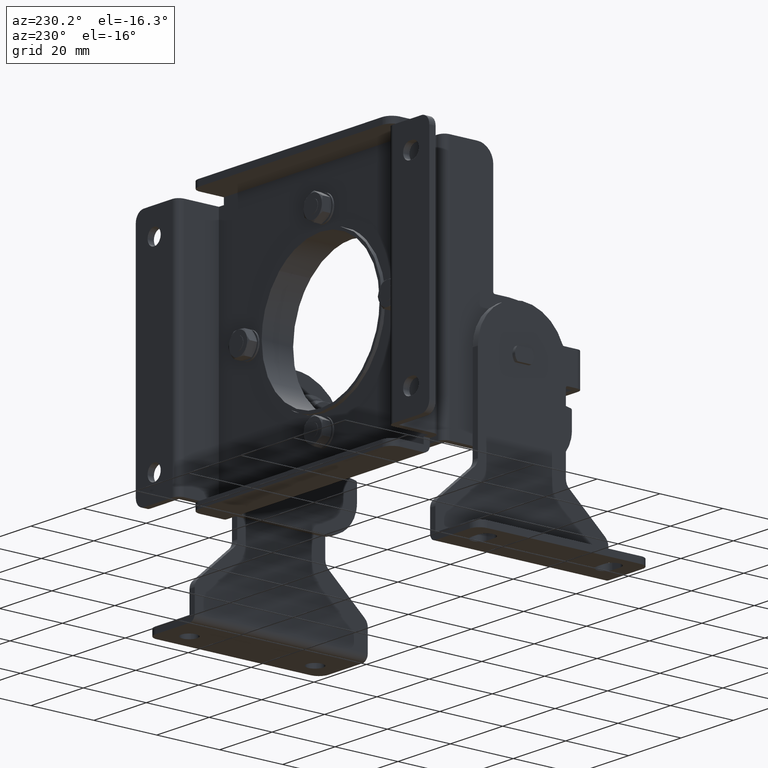
[diagram: clean part render]
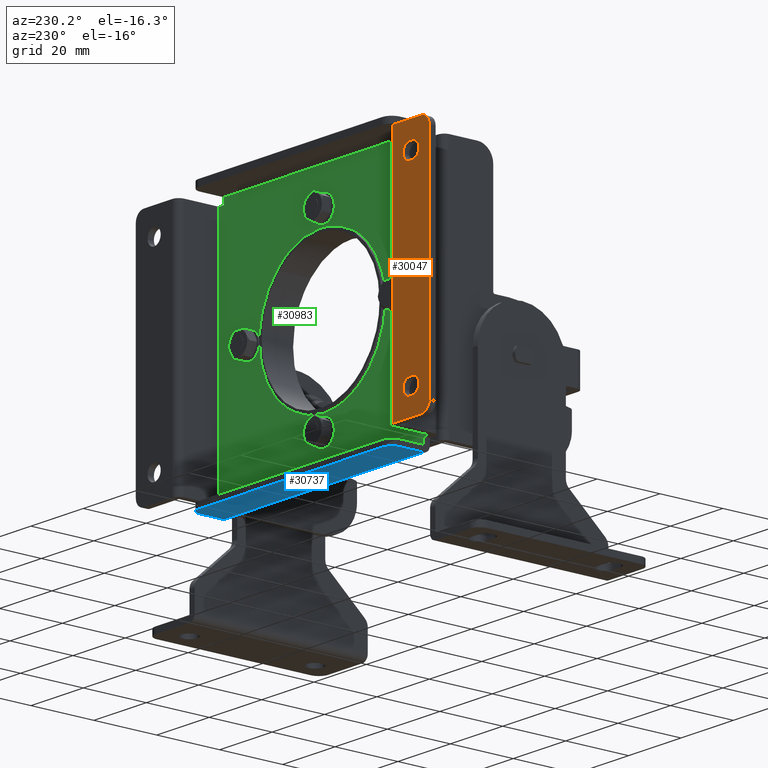
[diagram: same view with three faces highlighted in distinct colors, each labeled with its STEP entity id]
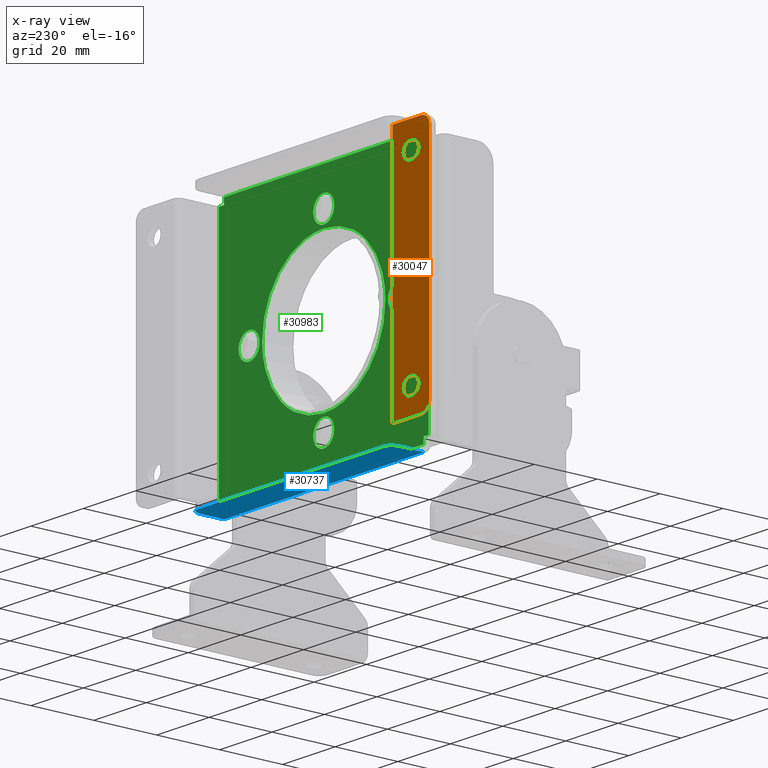
[diagram: x-ray of the same camera — body ghosted, the three highlighted faces saturated]
A machine part, auxiliary view with three faces highlighted in distinct colors.
The next image is the same camera in x-ray (body ghosted, the three faces saturated) — at least one of them is partly hidden behind the body in this view.
Their STEP definitions:

[orange] entity #30047 — the highlighted face is a freeform B-spline surface patch.
#28877=CARTESIAN_POINT('',(-49.500000000000000,0.0,27.500000000000000));
#28878=VERTEX_POINT('',#28877);
#28879=CARTESIAN_POINT('',(-48.500000000000000,0.0,27.500000000000000));
#28880=VERTEX_POINT('',#28879);
#28881=CARTESIAN_POINT('',(-49.500000000000000,0.0,27.500000000000000));
#28882=CARTESIAN_POINT('',(-48.500000000000000,0.0,27.500000000000000));
#28883=QUASI_UNIFORM_CURVE('',1,(#28881,#28882),.UNSPECIFIED.,.F.,.U.);
#28884=EDGE_CURVE('',#28878,#28880,#28883,.T.);
#28926=CARTESIAN_POINT('',(-51.999999999998003,0.0,29.999996832652950));
#28927=VERTEX_POINT('',#28926);
#28928=CARTESIAN_POINT('',(-51.999999999998003,0.0,29.999996832652950));
#28929=CARTESIAN_POINT('',(-52.000261943564503,0.0,29.693173835896939));
#28930=CARTESIAN_POINT('',(-51.897038132470620,0.0,29.141096968928689));
#28931=CARTESIAN_POINT('',(-51.540323811975313,0.0,28.511507226179369));
#28932=CARTESIAN_POINT('',(-51.143456945256233,0.0,28.094783465851592));
#28933=CARTESIAN_POINT('',(-50.706608699295693,0.0,27.787068165658031));
#28934=CARTESIAN_POINT('',(-50.154467541421823,0.0,27.558368814043298));
#28935=CARTESIAN_POINT('',(-49.724988774447532,0.0,27.499924841916780));
#28936=CARTESIAN_POINT('',(-49.500000000000000,0.0,27.500000000000000));
#28937=B_SPLINE_CURVE_WITH_KNOTS('',3,(#28928,#28929,#28930,#28931,#28932,#28933,#28934,#28935,#28936),.UNSPECIFIED.,.F.,.U.,(4,1,1,1,1,1,4),(0.000000176857155,0.920407877732268,1.656768840992928,2.147585234089817,2.638497523983445,3.252133924489902,3.927087575630514),.UNSPECIFIED.);
#28938=EDGE_CURVE('',#28927,#28878,#28937,.T.);
#28940=CARTESIAN_POINT('',(-49.500000000000000,0.0,32.500000000000000));
#28941=VERTEX_POINT('',#28940);
#28942=CARTESIAN_POINT('',(-49.500000000000000,0.0,32.500000000000000));
#28943=CARTESIAN_POINT('',(-49.724988318694059,0.0,32.500082092535457));
#28944=CARTESIAN_POINT('',(-50.113551037790707,0.0,32.447164692798353));
#28945=CARTESIAN_POINT('',(-50.669645786239691,0.0,32.232680162117617));
#28946=CARTESIAN_POINT('',(-51.115111980651960,0.0,31.935003203719042));
#28947=CARTESIAN_POINT('',(-51.568763980381171,0.0,31.458770400849222));
#28948=CARTESIAN_POINT('',(-51.911141189208131,0.0,30.818099801962688));
#28949=CARTESIAN_POINT('',(-52.000111027833590,0.0,30.265891814465849));
#28950=CARTESIAN_POINT('',(-51.999999999998003,0.0,29.999996832652950));
#28951=B_SPLINE_CURVE_WITH_KNOTS('',3,(#28942,#28943,#28944,#28945,#28946,#28947,#28948,#28949,#28950),.UNSPECIFIED.,.F.,.U.,(4,1,1,1,1,1,4),(0.000000172517670,0.674954436745335,1.165855475587356,1.779504131965912,2.270320976130868,3.129400962730091,3.927091146057907),.UNSPECIFIED.);
#28952=EDGE_CURVE('',#28941,#28927,#28951,.T.);
#28996=CARTESIAN_POINT('',(-48.500000000000000,0.0,32.500000000000000));
#28997=VERTEX_POINT('',#28996);
#28998=CARTESIAN_POINT('',(-48.500000000000000,0.0,32.500000000000000));
#28999=CARTESIAN_POINT('',(-49.500000000000000,0.0,32.500000000000000));
#29000=QUASI_UNIFORM_CURVE('',1,(#28998,#28999),.UNSPECIFIED.,.F.,.U.);
#29001=EDGE_CURVE('',#28997,#28941,#29000,.T.);
#29037=CARTESIAN_POINT('',(-46.000000000001997,0.0,30.000003167347050));
#29038=VERTEX_POINT('',#29037);
#29039=CARTESIAN_POINT('',(-46.000000000001997,0.0,30.000003167347050));
#29040=CARTESIAN_POINT('',(-45.999842678690747,0.0,30.265917079846869));
#29041=CARTESIAN_POINT('',(-46.069213401332867,0.0,30.695322041625779));
#29042=CARTESIAN_POINT('',(-46.344033493028093,0.0,31.315376106152890));
#29043=CARTESIAN_POINT('',(-46.750988309027413,0.0,31.837021152268111));
#29044=CARTESIAN_POINT('',(-47.291999694994040,0.0,32.217935652206251));
#29045=CARTESIAN_POINT('',(-47.886452696887147,0.0,32.447154623604654));
#29046=CARTESIAN_POINT('',(-48.275010430675863,0.0,32.500086355877833));
#29047=CARTESIAN_POINT('',(-48.500000000000000,0.0,32.500000000000000));
#29048=B_SPLINE_CURVE_WITH_KNOTS('',3,(#29039,#29040,#29041,#29042,#29043,#29044,#29045,#29046,#29047),.UNSPECIFIED.,.F.,.U.,(4,1,1,1,1,1,4),(0.000000176852652,0.797689634547580,1.288590226622449,2.024881895100623,2.761233333271179,3.252133924488909,3.927087575630557),.UNSPECIFIED.);
#29049=EDGE_CURVE('',#29038,#28997,#29048,.T.);
#29051=CARTESIAN_POINT('',(-48.500000000000000,0.0,27.500000000000000));
#29052=CARTESIAN_POINT('',(-48.193162061804358,0.0,27.499714058373112));
#29053=CARTESIAN_POINT('',(-47.682043582309419,0.0,27.595378192562031));
#29054=CARTESIAN_POINT('',(-47.118654397809117,0.0,27.896569412383169));
#29055=CARTESIAN_POINT('',(-46.738226139762332,0.0,28.208870428710838));
#29056=CARTESIAN_POINT('',(-46.362113848126022,0.0,28.644484854658561));
#29057=CARTESIAN_POINT('',(-46.069382252487529,0.0,29.263673311560972));
#29058=CARTESIAN_POINT('',(-45.999954969926492,0.0,29.775029924706789));
#29059=CARTESIAN_POINT('',(-46.000000000001997,0.0,30.000003167347050));
#29060=B_SPLINE_CURVE_WITH_KNOTS('',3,(#29051,#29052,#29053,#29054,#29055,#29056,#29057,#29058,#29059),.UNSPECIFIED.,.F.,.U.,(4,1,1,1,1,1,4),(0.000000172518658,0.920408710848867,1.534023585433655,1.902207583911122,2.393067728789425,3.252136883353010,3.927091146057906),.UNSPECIFIED.);
#29061=EDGE_CURVE('',#28880,#29038,#29060,.T.);
#29112=CARTESIAN_POINT('',(-46.000000000002011,0.0,-29.999996832652950));
#29113=VERTEX_POINT('',#29112);
#29114=CARTESIAN_POINT('',(-48.500000000000000,0.0,-27.500000000000000));
#29115=VERTEX_POINT('',#29114);
#29116=CARTESIAN_POINT('',(-46.000000000002011,0.0,-29.999996832652950));
#29117=CARTESIAN_POINT('',(-45.999720486164072,0.0,-29.693159017702310));
#29118=CARTESIAN_POINT('',(-46.095377521791427,0.0,-29.182052253348189));
#29119=CARTESIAN_POINT('',(-46.474193665845242,0.0,-28.473169004292121));
#29120=CARTESIAN_POINT('',(-46.973143602778819,0.0,-27.974160044782181));
#29121=CARTESIAN_POINT('',(-47.682065802710902,0.0,-27.595397473390729));
#29122=CARTESIAN_POINT('',(-48.193160181337802,0.0,-27.499713670339752));
#29123=CARTESIAN_POINT('',(-48.500000000000000,0.0,-27.500000000000000));
#29124=B_SPLINE_CURVE_WITH_KNOTS('',3,(#29116,#29117,#29118,#29119,#29120,#29121,#29122,#29123),.UNSPECIFIED.,.F.,.U.,(4,1,1,1,1,4),(0.000000176857770,0.920407877732480,1.534022196577108,2.393065560264816,3.006679873829063,3.927087575630463),.UNSPECIFIED.);
#29125=EDGE_CURVE('',#29113,#29115,#29124,.T.);
#29127=CARTESIAN_POINT('',(-48.500000000000000,0.0,-32.500000000000000));
#29128=VERTEX_POINT('',#29127);
#29129=CARTESIAN_POINT('',(-48.500000000000000,0.0,-32.500000000000000));
#29130=CARTESIAN_POINT('',(-48.234089015468498,0.0,-32.500155000918703));
#29131=CARTESIAN_POINT('',(-47.804685732959094,0.0,-32.430775249650608));
#29132=CARTESIAN_POINT('',(-47.147000617161382,0.0,-32.139395781917102));
#29133=CARTESIAN_POINT('',(-46.601469968699590,0.0,-31.691735361421689));
#29134=CARTESIAN_POINT('',(-46.125837524608428,0.0,-30.940511298283852));
#29135=CARTESIAN_POINT('',(-45.999586125026248,0.0,-30.347776986197601));
#29136=CARTESIAN_POINT('',(-46.000000000002011,0.0,-29.999996832652950));
#29137=B_SPLINE_CURVE_WITH_KNOTS('',3,(#29129,#29130,#29131,#29132,#29133,#29134,#29135,#29136),.UNSPECIFIED.,.F.,.U.,(4,1,1,1,1,4),(0.000000172525548,0.797690356851927,1.288591395065985,2.147587186495741,2.883954199011515,3.927091146057814),.UNSPECIFIED.);
#29138=EDGE_CURVE('',#29128,#29113,#29137,.T.);
#29186=CARTESIAN_POINT('',(-49.500000000000000,0.0,-32.500000000000000));
#29187=VERTEX_POINT('',#29186);
#29188=CARTESIAN_POINT('',(-49.500000000000000,0.0,-32.500000000000000));
#29189=CARTESIAN_POINT('',(-48.500000000000000,0.0,-32.500000000000000));
#29190=QUASI_UNIFORM_CURVE('',1,(#29188,#29189),.UNSPECIFIED.,.F.,.U.);
#29191=EDGE_CURVE('',#29187,#29128,#29190,.T.);
#29227=CARTESIAN_POINT('',(-51.999999999998003,0.0,-30.000003167347050));
#29228=VERTEX_POINT('',#29227);
#29229=CARTESIAN_POINT('',(-51.999999999998003,0.0,-30.000003167347050));
#29230=CARTESIAN_POINT('',(-52.000454257804520,0.0,-30.347799592708991));
#29231=CARTESIAN_POINT('',(-51.891549537292768,0.0,-30.858726927463621));
#29232=CARTESIAN_POINT('',(-51.536878266167612,0.0,-31.484566119178108));
#29233=CARTESIAN_POINT('',(-51.177103398690939,0.0,-31.881564139831749));
#29234=CARTESIAN_POINT('',(-50.673008596996873,0.0,-32.236645400313137));
#29235=CARTESIAN_POINT('',(-50.113613825661552,0.0,-32.452432974746252));
#29236=CARTESIAN_POINT('',(-49.684065841570202,0.0,-32.500014634828879));
#29237=CARTESIAN_POINT('',(-49.500000000000000,0.0,-32.500000000000000));
#29238=B_SPLINE_CURVE_WITH_KNOTS('',3,(#29229,#29230,#29231,#29232,#29233,#29234,#29235,#29236,#29237),.UNSPECIFIED.,.F.,.U.,(4,1,1,1,1,1,4),(0.000000176857172,1.043136175828212,1.534022196576088,2.147585234089014,2.638497523982948,3.374862389129184,3.927087575630487),.UNSPECIFIED.);
#29239=EDGE_CURVE('',#29228,#29187,#29238,.T.);
#29241=CARTESIAN_POINT('',(-49.500000000000000,0.0,-27.500000000000000));
#29242=VERTEX_POINT('',#29241);
#29243=CARTESIAN_POINT('',(-49.500000000000000,0.0,-27.500000000000000));
#29244=CARTESIAN_POINT('',(-49.806825524019423,0.0,-27.499736703015820));
#29245=CARTESIAN_POINT('',(-50.358893792866581,0.0,-27.602968600875499));
#29246=CARTESIAN_POINT('',(-50.988483046168277,0.0,-27.959681329468062));
#29247=CARTESIAN_POINT('',(-51.464807562393567,0.0,-28.413203808886159));
#29248=CARTESIAN_POINT('',(-51.874173421921547,0.0,-29.059431993815981));
#29249=CARTESIAN_POINT('',(-52.000445145787168,0.0,-29.652233845050780));
#29250=CARTESIAN_POINT('',(-51.999999999998003,0.0,-30.000003167347050));
#29251=B_SPLINE_CURVE_WITH_KNOTS('',3,(#29243,#29244,#29245,#29246,#29247,#29248,#29249,#29250),.UNSPECIFIED.,.F.,.U.,(4,1,1,1,1,4),(0.000000172520676,0.920408710850763,1.656770345825241,2.147587186492991,2.883954199009945,3.927091146057907),.UNSPECIFIED.);
#29252=EDGE_CURVE('',#29242,#29228,#29251,.T.);
#29295=CARTESIAN_POINT('',(-48.500000000000000,0.0,-27.500000000000000));
#29296=CARTESIAN_POINT('',(-49.500000000000000,0.0,-27.500000000000000));
#29297=QUASI_UNIFORM_CURVE('',1,(#29295,#29296),.UNSPECIFIED.,.F.,.U.);
#29298=EDGE_CURVE('',#29115,#29242,#29297,.T.);
#29466=CARTESIAN_POINT('',(-56.0,0.0,35.0));
#29467=VERTEX_POINT('',#29466);
#29468=CARTESIAN_POINT('',(-56.0,0.0,-35.0));
#29469=VERTEX_POINT('',#29468);
#29470=CARTESIAN_POINT('',(-56.0,0.0,35.0));
#29471=CARTESIAN_POINT('',(-56.0,0.0,-35.0));
#29472=QUASI_UNIFORM_CURVE('',1,(#29470,#29471),.UNSPECIFIED.,.F.,.U.);
#29473=EDGE_CURVE('',#29467,#29469,#29472,.T.);
#29729=CARTESIAN_POINT('',(-42.0,0.0,-38.0));
#29730=VERTEX_POINT('',#29729);
#29743=CARTESIAN_POINT('',(-42.0,0.0,38.0));
#29744=VERTEX_POINT('',#29743);
#29745=CARTESIAN_POINT('',(-42.0,0.0,38.0));
#29746=CARTESIAN_POINT('',(-42.0,0.0,-38.0));
#29747=QUASI_UNIFORM_CURVE('',1,(#29745,#29746),.UNSPECIFIED.,.F.,.U.);
#29748=EDGE_CURVE('',#29744,#29730,#29747,.T.);
#29982=CARTESIAN_POINT('',(-56.699299972865290,0.0,-41.796199852697249));
#29983=CARTESIAN_POINT('',(-56.699299972865290,0.0,41.796201891176104));
#29984=CARTESIAN_POINT('',(-41.300699651625450,0.0,-41.796199852697249));
#29985=CARTESIAN_POINT('',(-41.300699651625450,0.0,41.796201891176104));
#29986=B_SPLINE_SURFACE_WITH_KNOTS('',1,1,((#29982,#29984),(#29983,#29985)),.UNSPECIFIED.,.F.,.F.,.U.,(2,2),(2,2),(0.0,83.592401743873353),(0.0,15.398600321239840),.UNSPECIFIED.);
#29987=CARTESIAN_POINT('',(-53.0,0.0,-38.0));
#29988=VERTEX_POINT('',#29987);
#29989=CARTESIAN_POINT('',(-53.0,0.0,-38.0));
#29990=CARTESIAN_POINT('',(-42.0,0.0,-38.0));
#29991=QUASI_UNIFORM_CURVE('',1,(#29989,#29990),.UNSPECIFIED.,.F.,.U.);
#29992=EDGE_CURVE('',#29988,#29730,#29991,.T.);
#29993=ORIENTED_EDGE('',*,*,#29992,.F.);
#29994=CARTESIAN_POINT('',(-53.0,0.0,-38.0));
#29995=CARTESIAN_POINT('',(-53.196340519397218,0.0,-38.000022336929682));
#29996=CARTESIAN_POINT('',(-53.613583065833197,0.0,-37.958906566545892));
#29997=CARTESIAN_POINT('',(-54.202111400686029,0.0,-37.772491325753052));
#29998=CARTESIAN_POINT('',(-54.738567208057532,0.0,-37.468564665809907));
#29999=CARTESIAN_POINT('',(-55.186750397558129,0.0,-37.081957667787513));
#30000=CARTESIAN_POINT('',(-55.550884715093261,0.0,-36.615350096480128));
#30001=CARTESIAN_POINT('',(-55.894719383872143,0.0,-35.932462431895743));
#30002=CARTESIAN_POINT('',(-56.000334596171022,0.0,-35.368215103648879));
#30003=CARTESIAN_POINT('',(-56.0,0.0,-35.0));
#30004=B_SPLINE_CURVE_WITH_KNOTS('',3,(#29994,#29995,#29996,#29997,#29998,#29999,#30000,#30001,#30002,#30003),.UNSPECIFIED.,.F.,.U.,(4,1,1,1,1,1,1,4),(0.000000081615035,0.589038300794919,1.251761143320354,1.840849277113870,2.429879244334853,3.018927278027699,3.608014042211845,4.712507233005262),.UNSPECIFIED.);
#30005=EDGE_CURVE('',#29988,#29469,#30004,.T.);
#30006=ORIENTED_EDGE('',*,*,#30005,.T.);
#30007=ORIENTED_EDGE('',*,*,#29473,.F.);
#30008=CARTESIAN_POINT('',(-53.0,0.0,38.0));
#30009=VERTEX_POINT('',#30008);
#30010=CARTESIAN_POINT('',(-56.0,0.0,35.0));
#30011=CARTESIAN_POINT('',(-56.000174405830727,0.0,35.319091184240378));
#30012=CARTESIAN_POINT('',(-55.916963140730871,0.0,35.834391137107900));
#30013=CARTESIAN_POINT('',(-55.627083201603263,0.0,36.488235912255647));
#30014=CARTESIAN_POINT('',(-55.286267936650773,0.0,36.972155703202233));
#30015=CARTESIAN_POINT('',(-54.857603426959862,0.0,37.380289447465508));
#30016=CARTESIAN_POINT('',(-54.399203041034212,0.0,37.670538436166687));
#30017=CARTESIAN_POINT('',(-53.785302901597753,0.0,37.924870840663118));
#30018=CARTESIAN_POINT('',(-53.319093644333712,0.0,38.000192434086607));
#30019=CARTESIAN_POINT('',(-53.0,0.0,38.0));
#30020=B_SPLINE_CURVE_WITH_KNOTS('',3,(#30010,#30011,#30012,#30013,#30014,#30015,#30016,#30017,#30018,#30019),.UNSPECIFIED.,.F.,.U.,(4,1,1,1,1,1,1,4),(0.000000081618023,0.957223645372997,1.546307110590945,2.135372726256139,2.724392212705132,3.313475256887301,3.755285632220160,4.712507233005235),.UNSPECIFIED.);
#30021=EDGE_CURVE('',#29467,#30009,#30020,.T.);
#30022=ORIENTED_EDGE('',*,*,#30021,.T.);
#30023=CARTESIAN_POINT('',(-53.0,0.0,38.0));
#30024=CARTESIAN_POINT('',(-42.0,0.0,38.0));
#30025=QUASI_UNIFORM_CURVE('',1,(#30023,#30024),.UNSPECIFIED.,.F.,.U.);
#30026=EDGE_CURVE('',#30009,#29744,#30025,.T.);
#30027=ORIENTED_EDGE('',*,*,#30026,.T.);
#30028=ORIENTED_EDGE('',*,*,#29748,.T.);
#30029=EDGE_LOOP('',(#29993,#30006,#30007,#30022,#30027,#30028));
#30030=FACE_OUTER_BOUND('',#30029,.T.);
#30031=ORIENTED_EDGE('',*,*,#29298,.T.);
#30032=ORIENTED_EDGE('',*,*,#29252,.T.);
#30033=ORIENTED_EDGE('',*,*,#29239,.T.);
#30034=ORIENTED_EDGE('',*,*,#29191,.T.);
#30035=ORIENTED_EDGE('',*,*,#29138,.T.);
#30036=ORIENTED_EDGE('',*,*,#29125,.T.);
#30037=EDGE_LOOP('',(#30031,#30032,#30033,#30034,#30035,#30036));
#30038=FACE_BOUND('',#30037,.T.);
#30039=ORIENTED_EDGE('',*,*,#28884,.T.);
#30040=ORIENTED_EDGE('',*,*,#29061,.T.);
#30041=ORIENTED_EDGE('',*,*,#29049,.T.);
#30042=ORIENTED_EDGE('',*,*,#29001,.T.);
#30043=ORIENTED_EDGE('',*,*,#28952,.T.);
#30044=ORIENTED_EDGE('',*,*,#28938,.T.);
#30045=EDGE_LOOP('',(#30039,#30040,#30041,#30042,#30043,#30044));
#30046=FACE_BOUND('',#30045,.T.);
#30047=ADVANCED_FACE('',(#30030,#30038,#30046),#29986,.T.);

[blue] entity #30737 — the highlighted face is a freeform B-spline surface patch.
#29414=CARTESIAN_POINT('',(-38.100000000000001,-13.100000000000000,-42.0));
#29415=VERTEX_POINT('',#29414);
#29431=CARTESIAN_POINT('',(38.100000000000001,-13.100000000000000,-42.0));
#29432=VERTEX_POINT('',#29431);
#29433=CARTESIAN_POINT('',(38.100000000000001,-13.100000000000000,-42.0));
#29434=CARTESIAN_POINT('',(-38.100000000000001,-13.100000000000000,-42.0));
#29435=QUASI_UNIFORM_CURVE('',1,(#29433,#29434),.UNSPECIFIED.,.F.,.U.);
#29436=EDGE_CURVE('',#29432,#29415,#29435,.T.);
#30395=CARTESIAN_POINT('',(38.100000000000001,-5.500000000000000,-42.0));
#30396=VERTEX_POINT('',#30395);
#30402=CARTESIAN_POINT('',(35.100000000000001,-2.499999999999970,-42.0));
#30403=VERTEX_POINT('',#30402);
#30404=CARTESIAN_POINT('',(35.100000000000001,-2.499999999999970,-42.0));
#30405=CARTESIAN_POINT('',(35.369988750376493,-2.499901739564969,-42.0));
#30406=CARTESIAN_POINT('',(35.787175690382881,-2.556729192707137,-42.0));
#30407=CARTESIAN_POINT('',(36.366478503903572,-2.764013362391842,-42.000000000000043));
#30408=CARTESIAN_POINT('',(36.838570414156578,-3.031433040632789,-42.000000000000043));
#30409=CARTESIAN_POINT('',(37.286751352122558,-3.418036176399105,-41.999999999999929));
#30410=CARTESIAN_POINT('',(37.620537837109673,-3.845772132429069,-42.000000000000121));
#30411=CARTESIAN_POINT('',(37.887394346714672,-4.344977876980300,-42.000000000000043));
#30412=CARTESIAN_POINT('',(38.058916612100987,-4.886417404107095,-41.999999999999453));
#30413=CARTESIAN_POINT('',(38.100016911059889,-5.303657760697857,-42.000000000000632));
#30414=CARTESIAN_POINT('',(38.100000000000001,-5.500000000000000,-42.0));
#30415=B_SPLINE_CURVE_WITH_KNOTS('',3,(#30404,#30405,#30406,#30407,#30408,#30409,#30410,#30411,#30412,#30413,#30414),.UNSPECIFIED.,.F.,.U.,(4,1,1,1,1,1,1,1,4),(0.000000081614828,0.809949547851059,1.251761143318802,1.840849277112428,2.429879244333688,3.018927278026838,3.460746846894267,4.123469265407296,4.712507233005337),.UNSPECIFIED.);
#30416=EDGE_CURVE('',#30403,#30396,#30415,.T.);
#30457=CARTESIAN_POINT('',(-35.100000000000001,-2.499999999999970,-42.0));
#30458=VERTEX_POINT('',#30457);
#30464=CARTESIAN_POINT('',(-38.100000000000001,-5.500000000000000,-42.0));
#30465=VERTEX_POINT('',#30464);
#30466=CARTESIAN_POINT('',(-38.100000000000001,-5.500000000000000,-42.0));
#30467=CARTESIAN_POINT('',(-38.100097956238571,-5.230010068747691,-42.000000000000007));
#30468=CARTESIAN_POINT('',(-38.043271200670247,-4.812828240291802,-41.999999999999957));
#30469=CARTESIAN_POINT('',(-37.835967425181671,-4.233535975233355,-42.000000000000050));
#30470=CARTESIAN_POINT('',(-37.520041493937889,-3.675517594702149,-42.000000000000028));
#30471=CARTESIAN_POINT('',(-37.040998826460743,-3.172431926426708,-41.999999999999879));
#30472=CARTESIAN_POINT('',(-36.499196421775451,-2.829466675757039,-42.000000000000327));
#30473=CARTESIAN_POINT('',(-35.885302818476873,-2.575131839678640,-41.999999999999517));
#30474=CARTESIAN_POINT('',(-35.419094874433242,-2.499804142261245,-42.000000000000327));
#30475=CARTESIAN_POINT('',(-35.100000000000001,-2.499999999999970,-42.0));
#30476=B_SPLINE_CURVE_WITH_KNOTS('',3,(#30466,#30467,#30468,#30469,#30470,#30471,#30472,#30473,#30474,#30475),.UNSPECIFIED.,.F.,.U.,(4,1,1,1,1,1,1,4),(0.000000081614679,0.809949547851961,1.251761143319923,1.840849277113522,2.724392212704225,3.313475256886783,3.755285632219870,4.712507233005306),.UNSPECIFIED.);
#30477=EDGE_CURVE('',#30465,#30458,#30476,.T.);
#30669=CARTESIAN_POINT('',(-38.100000000000001,-5.500000000000000,-42.0));
#30670=CARTESIAN_POINT('',(-38.100000000000001,-13.100000000000000,-42.0));
#30671=QUASI_UNIFORM_CURVE('',1,(#30669,#30670),.UNSPECIFIED.,.F.,.U.);
#30672=EDGE_CURVE('',#30465,#29415,#30671,.T.);
#30696=CARTESIAN_POINT('',(38.100000000000001,-5.500000000000000,-42.0));
#30697=CARTESIAN_POINT('',(38.100000000000001,-13.100000000000000,-42.0));
#30698=QUASI_UNIFORM_CURVE('',1,(#30696,#30697),.UNSPECIFIED.,.F.,.U.);
#30699=EDGE_CURVE('',#30396,#29432,#30698,.T.);
#30720=CARTESIAN_POINT('',(41.906189852309623,-13.629469979455150,-42.0));
#30721=CARTESIAN_POINT('',(-41.906191896152890,-13.629469979455150,-42.0));
#30722=CARTESIAN_POINT('',(41.906189852309623,-1.970529736230671,-42.0));
#30723=CARTESIAN_POINT('',(-41.906191896152890,-1.970529736230671,-42.0));
#30724=B_SPLINE_SURFACE_WITH_KNOTS('',1,1,((#30720,#30722),(#30721,#30723)),.UNSPECIFIED.,.F.,.F.,.U.,(2,2),(2,2),(0.0,83.812381748462514),(0.0,11.658940243224480),.UNSPECIFIED.);
#30725=ORIENTED_EDGE('',*,*,#30672,.F.);
#30726=ORIENTED_EDGE('',*,*,#30477,.T.);
#30727=CARTESIAN_POINT('',(35.100000000000001,-2.499999999999970,-42.0));
#30728=CARTESIAN_POINT('',(-35.100000000000001,-2.499999999999970,-42.0));
#30729=QUASI_UNIFORM_CURVE('',1,(#30727,#30728),.UNSPECIFIED.,.F.,.U.);
#30730=EDGE_CURVE('',#30403,#30458,#30729,.T.);
#30731=ORIENTED_EDGE('',*,*,#30730,.F.);
#30732=ORIENTED_EDGE('',*,*,#30416,.T.);
#30733=ORIENTED_EDGE('',*,*,#30699,.T.);
#30734=ORIENTED_EDGE('',*,*,#29436,.T.);
#30735=EDGE_LOOP('',(#30725,#30726,#30731,#30732,#30733,#30734));
#30736=FACE_OUTER_BOUND('',#30735,.T.);
#30737=ADVANCED_FACE('',(#30736),#30724,.T.);

[green] entity #30983 — the highlighted face is a freeform B-spline surface patch.
#27707=CARTESIAN_POINT('',(-2.216769E-013,-13.100000000000000,-24.500000000000000));
#27708=VERTEX_POINT('',#27707);
#27709=CARTESIAN_POINT('',(2.803637006244702,-13.099999999999380,-25.646998138194149));
#27710=VERTEX_POINT('',#27709);
#27711=CARTESIAN_POINT('',(-2.216769E-013,-13.100000000000000,-24.500000000000000));
#27712=CARTESIAN_POINT('',(0.275068592433228,-13.099999999999920,-24.499974124845089));
#27713=CARTESIAN_POINT('',(0.889942210323690,-13.099999999999850,-24.563610597793669));
#27714=CARTESIAN_POINT('',(1.876337250333779,-13.099999999999479,-24.905537624238221));
#27715=CARTESIAN_POINT('',(2.503716958528049,-13.099999999999540,-25.351951566860549));
#27716=CARTESIAN_POINT('',(2.803637006244702,-13.099999999999380,-25.646998138194149));
#27717=B_SPLINE_CURVE_WITH_KNOTS('',3,(#27711,#27712,#27713,#27714,#27715,#27716),.UNSPECIFIED.,.F.,.U.,(4,1,1,4),(0.000000038322342,0.825218855739345,1.844596436083715,3.106705053066289),.UNSPECIFIED.);
#27718=EDGE_CURVE('',#27708,#27710,#27717,.T.);
#27728=CARTESIAN_POINT('',(-2.803637006245145,-13.099999999999380,-31.353001861805851));
#27729=VERTEX_POINT('',#27728);
#27735=CARTESIAN_POINT('',(-4.000000000000222,-13.100000000000000,-28.500000043133390));
#27736=VERTEX_POINT('',#27735);
#27737=CARTESIAN_POINT('',(-2.803637006245145,-13.099999999999380,-31.353001861805851));
#27738=CARTESIAN_POINT('',(-2.980655436245153,-13.099999999999410,-31.179076750972271));
#27739=CARTESIAN_POINT('',(-3.312901584768833,-13.099999999999509,-30.785442491270580));
#27740=CARTESIAN_POINT('',(-3.661109574370280,-13.099999999999660,-30.161067340499240));
#27741=CARTESIAN_POINT('',(-3.928398447517828,-13.099999999999699,-29.393332329182002));
#27742=CARTESIAN_POINT('',(-4.000100997739437,-13.100000000000099,-28.847444419368291));
#27743=CARTESIAN_POINT('',(-4.000000000000222,-13.100000000000000,-28.500000043133390));
#27744=B_SPLINE_CURVE_WITH_KNOTS('',3,(#27737,#27738,#27739,#27740,#27741,#27742,#27743),.UNSPECIFIED.,.F.,.U.,(4,1,1,1,4),(0.000000037969724,0.744495918242998,1.538648591500952,2.134219707048860,3.176519658325494),.UNSPECIFIED.);
#27745=EDGE_CURVE('',#27729,#27736,#27744,.T.);
#27747=CARTESIAN_POINT('',(-4.000000000000222,-13.100000000000000,-28.500000043133390));
#27748=CARTESIAN_POINT('',(-4.000055575336242,-13.100000000000030,-28.189112667483759));
#27749=CARTESIAN_POINT('',(-3.929079914192236,-13.099999999999969,-27.583725808537341));
#27750=CARTESIAN_POINT('',(-3.646224606879737,-13.100000000000019,-26.793214296675679));
#27751=CARTESIAN_POINT('',(-3.198756935792940,-13.100000000000000,-26.046605869785129));
#27752=CARTESIAN_POINT('',(-2.644949483210142,-13.100000000000000,-25.457696757460980));
#27753=CARTESIAN_POINT('',(-1.954238143611851,-13.099999999999991,-24.983920137302089));
#27754=CARTESIAN_POINT('',(-1.112522743320450,-13.100000000000030,-24.610691249376611));
#27755=CARTESIAN_POINT('',(-0.425450756388457,-13.099999999999980,-24.499782185111609));
#27756=CARTESIAN_POINT('',(-2.216769E-013,-13.100000000000000,-24.500000000000000));
#27757=B_SPLINE_CURVE_WITH_KNOTS('',3,(#27747,#27748,#27749,#27750,#27751,#27752,#27753,#27754,#27755,#27756),.UNSPECIFIED.,.F.,.U.,(4,1,1,1,1,1,1,4),(0.000000149790586,0.932655449921123,1.816246585103794,2.503497288234062,3.534277509831879,4.221536316710177,5.006951859342612,6.283224755825400),.UNSPECIFIED.);
#27758=EDGE_CURVE('',#27736,#27708,#27757,.T.);
#27781=CARTESIAN_POINT('',(3.999999999999778,-13.100000000000000,-28.499999956866599));
#27782=VERTEX_POINT('',#27781);
#27783=CARTESIAN_POINT('',(2.803637006244702,-13.099999999999380,-25.646998138194149));
#27784=CARTESIAN_POINT('',(3.158036223965619,-13.099999999999440,-25.994596077228639));
#27785=CARTESIAN_POINT('',(3.618848943910847,-13.099999999999641,-26.658143306589359));
#27786=CARTESIAN_POINT('',(3.943979146321829,-13.099999999999760,-27.672799059832212));
#27787=CARTESIAN_POINT('',(4.000028127945775,-13.100000000000019,-28.235291650694219));
#27788=CARTESIAN_POINT('',(3.999999999999778,-13.100000000000000,-28.499999956866599));
#27789=B_SPLINE_CURVE_WITH_KNOTS('',3,(#27783,#27784,#27785,#27786,#27787,#27788),.UNSPECIFIED.,.F.,.U.,(4,1,1,4),(0.000000037969274,1.489003316197385,2.382389753772573,3.176519658325480),.UNSPECIFIED.);
#27790=EDGE_CURVE('',#27710,#27782,#27789,.T.);
#27792=CARTESIAN_POINT('',(-2.216769E-013,-13.100000000000000,-32.500000000000000));
#27793=VERTEX_POINT('',#27792);
#27794=CARTESIAN_POINT('',(3.999999999999778,-13.100000000000000,-28.499999956866599));
#27795=CARTESIAN_POINT('',(4.000049376124305,-13.100000000000030,-28.810885035217130));
#27796=CARTESIAN_POINT('',(3.925272169078304,-13.099999999999969,-29.449008559640792));
#27797=CARTESIAN_POINT('',(3.609352949428684,-13.099999999999991,-30.298918132490151));
#27798=CARTESIAN_POINT('',(3.089329551553155,-13.100000000000010,-31.098297658278089));
#27799=CARTESIAN_POINT('',(2.455545940586449,-13.100000000000010,-31.701710474796808));
#27800=CARTESIAN_POINT('',(1.663333655299289,-13.100000000000019,-32.169921882775967));
#27801=CARTESIAN_POINT('',(0.867200256734677,-13.100000000000010,-32.438337205665292));
#27802=CARTESIAN_POINT('',(0.278155496978585,-13.099999999999969,-32.500036468337989));
#27803=CARTESIAN_POINT('',(-2.216769E-013,-13.100000000000000,-32.500000000000000));
#27804=B_SPLINE_CURVE_WITH_KNOTS('',3,(#27794,#27795,#27796,#27797,#27798,#27799,#27800,#27801,#27802,#27803),.UNSPECIFIED.,.F.,.U.,(4,1,1,1,1,1,1,4),(0.000000149785194,0.932655449918036,1.914424040798484,2.699833533241176,3.779733911727375,4.516062338901714,5.448756177186414,6.283224755825305),.UNSPECIFIED.);
#27805=EDGE_CURVE('',#27782,#27793,#27804,.T.);
#27807=CARTESIAN_POINT('',(-2.216769E-013,-13.100000000000000,-32.500000000000000));
#27808=CARTESIAN_POINT('',(-0.420709978291181,-13.099999999999870,-32.500184408957402));
#27809=CARTESIAN_POINT('',(-1.181109927724138,-13.099999999999810,-32.378944267840609));
#27810=CARTESIAN_POINT('',(-2.124292644832602,-13.099999999999440,-31.931382904877712));
#27811=CARTESIAN_POINT('',(-2.607463768820604,-13.099999999999460,-31.545820614955971));
#27812=CARTESIAN_POINT('',(-2.803637006245145,-13.099999999999380,-31.353001861805851));
#27813=B_SPLINE_CURVE_WITH_KNOTS('',3,(#27807,#27808,#27809,#27810,#27811,#27812),.UNSPECIFIED.,.F.,.U.,(4,1,1,4),(0.000000038323228,1.262108655304190,2.281486235649582,3.106705053066270),.UNSPECIFIED.);
#27814=EDGE_CURVE('',#27793,#27729,#27813,.T.);
#27842=CARTESIAN_POINT('',(-28.500000000000000,-13.100000000000000,4.000000000000222));
#27843=VERTEX_POINT('',#27842);
#27844=CARTESIAN_POINT('',(-25.696362993755070,-13.099999999999380,2.853001861806071));
#27845=VERTEX_POINT('',#27844);
#27846=CARTESIAN_POINT('',(-28.500000000000000,-13.100000000000000,4.000000000000222));
#27847=CARTESIAN_POINT('',(-28.224931552157180,-13.100000000000010,4.000025815004857));
#27848=CARTESIAN_POINT('',(-27.610057580824360,-13.099999999999721,3.936389411634315));
#27849=CARTESIAN_POINT('',(-26.623663464716468,-13.099999999999691,3.594461539334583));
#27850=CARTESIAN_POINT('',(-25.996282550633310,-13.099999999999349,3.148049355417919));
#27851=CARTESIAN_POINT('',(-25.696362993755070,-13.099999999999380,2.853001861806071));
#27852=B_SPLINE_CURVE_WITH_KNOTS('',3,(#27846,#27847,#27848,#27849,#27850,#27851),.UNSPECIFIED.,.F.,.U.,(4,1,1,4),(0.000000038323501,0.825218855740200,1.844596436084137,3.106705053066291),.UNSPECIFIED.);
#27853=EDGE_CURVE('',#27843,#27845,#27852,.T.);
#27863=CARTESIAN_POINT('',(-31.303637006244919,-13.099999999999380,-2.853001861805626));
#27864=VERTEX_POINT('',#27863);
#27870=CARTESIAN_POINT('',(-32.500000000000000,-13.100000000000000,-0.000000043133167));
#27871=VERTEX_POINT('',#27870);
#27872=CARTESIAN_POINT('',(-31.303637006244919,-13.099999999999380,-2.853001861805626));
#27873=CARTESIAN_POINT('',(-31.669898789126549,-13.099999999999429,-2.493826921624592));
#27874=CARTESIAN_POINT('',(-32.060354028596670,-13.099999999999620,-1.923964034127885));
#27875=CARTESIAN_POINT('',(-32.421453299042902,-13.099999999999770,-0.926383326829807));
#27876=CARTESIAN_POINT('',(-32.500172472654242,-13.099999999999930,-0.380544740394066));
#27877=CARTESIAN_POINT('',(-32.500000000000000,-13.100000000000000,-0.000000043133167));
#27878=B_SPLINE_CURVE_WITH_KNOTS('',3,(#27872,#27873,#27874,#27875,#27876,#27877),.UNSPECIFIED.,.F.,.U.,(4,1,1,4),(0.000000037966993,1.538648591499527,2.034955233998286,3.176519658325526),.UNSPECIFIED.);
#27879=EDGE_CURVE('',#27864,#27871,#27878,.T.);
#27881=CARTESIAN_POINT('',(-32.500000000000000,-13.100000000000000,-0.000000043133167));
#27882=CARTESIAN_POINT('',(-32.500154936728102,-13.100000000000000,0.376354251649663));
#27883=CARTESIAN_POINT('',(-32.418546309347150,-13.099999999999980,0.948944483914196));
#27884=CARTESIAN_POINT('',(-32.104152008292303,-13.100000000000060,1.794815708897463));
#27885=CARTESIAN_POINT('',(-31.714996508192950,-13.099999999999969,2.426379172410428));
#27886=CARTESIAN_POINT('',(-31.141450659458361,-13.100000000000000,3.036212665972948));
#27887=CARTESIAN_POINT('',(-30.554407917263148,-13.100000000000010,3.460510241288503));
#27888=CARTESIAN_POINT('',(-29.661512727390289,-13.100000000000049,3.876244370459885));
#27889=CARTESIAN_POINT('',(-28.974577297752269,-13.099999999999950,4.000365299163386));
#27890=CARTESIAN_POINT('',(-28.500000000000000,-13.100000000000000,4.000000000000222));
#27891=B_SPLINE_CURVE_WITH_KNOTS('',3,(#27881,#27882,#27883,#27884,#27885,#27886,#27887,#27888,#27889,#27890),.UNSPECIFIED.,.F.,.U.,(4,1,1,1,1,1,1,4),(0.000000149782903,1.129007222704862,1.718072152317726,2.699833533238512,3.337933100443694,4.221536316708916,4.859684090014692,6.283224755825366),.UNSPECIFIED.);
#27892=EDGE_CURVE('',#27871,#27843,#27891,.T.);
#27915=CARTESIAN_POINT('',(-24.500000000000000,-13.100000000000000,0.000000043133625));
#27916=VERTEX_POINT('',#27915);
#27917=CARTESIAN_POINT('',(-25.696362993755070,-13.099999999999380,2.853001861806071));
#27918=CARTESIAN_POINT('',(-25.448493612203190,-13.099999999999421,2.609543068468876));
#27919=CARTESIAN_POINT('',(-25.006491580791941,-13.099999999999630,2.044388162033464));
#27920=CARTESIAN_POINT('',(-24.593211355316178,-13.099999999999641,1.058813527602478));
#27921=CARTESIAN_POINT('',(-24.499919781117910,-13.100000000000110,0.347435055249049));
#27922=CARTESIAN_POINT('',(-24.500000000000000,-13.100000000000000,0.000000043133625));
#27923=B_SPLINE_CURVE_WITH_KNOTS('',3,(#27917,#27918,#27919,#27920,#27921,#27922),.UNSPECIFIED.,.F.,.U.,(4,1,1,4),(0.000000037972257,1.042300899784655,2.134219707049618,3.176519658325455),.UNSPECIFIED.);
#27924=EDGE_CURVE('',#27845,#27916,#27923,.T.);
#27926=CARTESIAN_POINT('',(-28.500000000000000,-13.100000000000000,-3.999999999999778));
#27927=VERTEX_POINT('',#27926);
#27928=CARTESIAN_POINT('',(-24.500000000000000,-13.100000000000000,0.000000043133625));
#27929=CARTESIAN_POINT('',(-24.499896672358972,-13.100000000000049,-0.343619969650484));
#27930=CARTESIAN_POINT('',(-24.570027557457220,-13.099999999999961,-0.883522716345103));
#27931=CARTESIAN_POINT('',(-24.842251132034399,-13.100000000000010,-1.674763584766024));
#27932=CARTESIAN_POINT('',(-25.296484649413649,-13.100000000000071,-2.477040415125118));
#27933=CARTESIAN_POINT('',(-26.022948811495599,-13.099999999999850,-3.203526206613932));
#27934=CARTESIAN_POINT('',(-26.882536545957489,-13.100000000000060,-3.690232847442634));
#27935=CARTESIAN_POINT('',(-27.681900090541120,-13.099999999999840,-3.943443484380273));
#27936=CARTESIAN_POINT('',(-28.221842441935610,-13.100000000000060,-4.000042403169852));
#27937=CARTESIAN_POINT('',(-28.500000000000000,-13.100000000000000,-3.999999999999778));
#27938=B_SPLINE_CURVE_WITH_KNOTS('',3,(#27928,#27929,#27930,#27931,#27932,#27933,#27934,#27935,#27936,#27937),.UNSPECIFIED.,.F.,.U.,(4,1,1,1,1,1,1,4),(0.000000149793881,1.030830397862038,1.619895747184000,2.503497288236603,3.779733911728912,4.663330520178583,5.448756177186641,6.283224755825356),.UNSPECIFIED.);
#27939=EDGE_CURVE('',#27916,#27927,#27938,.T.);
#27941=CARTESIAN_POINT('',(-28.500000000000000,-13.100000000000000,-3.999999999999778));
#27942=CARTESIAN_POINT('',(-29.001691078923638,-13.099999999999969,-4.000493061962029));
#27943=CARTESIAN_POINT('',(-29.761809506526610,-13.099999999999600,-3.854992586516638));
#27944=CARTESIAN_POINT('',(-30.687844298033049,-13.099999999999669,-3.380584302848117));
#27945=CARTESIAN_POINT('',(-31.107470097042022,-13.099999999999261,-3.045834907094484));
#27946=CARTESIAN_POINT('',(-31.303637006244919,-13.099999999999380,-2.853001861805626));
#27947=B_SPLINE_CURVE_WITH_KNOTS('',3,(#27941,#27942,#27943,#27944,#27945,#27946),.UNSPECIFIED.,.F.,.U.,(4,1,1,4),(0.000000038324707,1.504833814841760,2.281486235649699,3.106705053066271),.UNSPECIFIED.);
#27948=EDGE_CURVE('',#27927,#27864,#27947,.T.);
#27976=CARTESIAN_POINT('',(2.216769E-013,-13.100000000000000,32.500000000000000));
#27977=VERTEX_POINT('',#27976);
#27978=CARTESIAN_POINT('',(2.803637006245147,-13.099999999999380,31.353001861805851));
#27979=VERTEX_POINT('',#27978);
#27980=CARTESIAN_POINT('',(2.216769E-013,-13.100000000000000,32.500000000000000));
#27981=CARTESIAN_POINT('',(0.355989708125960,-13.099999999999930,32.500102602324553));
#27982=CARTESIAN_POINT('',(0.906050766930625,-13.099999999999801,32.426045753010918));
#27983=CARTESIAN_POINT('',(1.885079953356226,-13.099999999999531,32.080058580690050));
#27984=CARTESIAN_POINT('',(2.457638693788389,-13.099999999999500,31.693580784000009));
#27985=CARTESIAN_POINT('',(2.803637006245147,-13.099999999999380,31.353001861805851));
#27986=B_SPLINE_CURVE_WITH_KNOTS('',3,(#27980,#27981,#27982,#27983,#27984,#27985),.UNSPECIFIED.,.F.,.U.,(4,1,1,4),(0.000000038319831,1.067937926017248,1.650431684982546,3.106705053066294),.UNSPECIFIED.);
#27987=EDGE_CURVE('',#27977,#27979,#27986,.T.);
#27997=CARTESIAN_POINT('',(-2.803637006244700,-13.099999999999380,25.646998138194149));
#27998=VERTEX_POINT('',#27997);
#28004=CARTESIAN_POINT('',(-3.999999999999778,-13.100000000000000,28.499999956866610));
#28005=VERTEX_POINT('',#28004);
#28006=CARTESIAN_POINT('',(-2.803637006244700,-13.099999999999380,25.646998138194149));
#28007=CARTESIAN_POINT('',(-3.051515790627261,-13.099999999999451,25.890453135549219));
#28008=CARTESIAN_POINT('',(-3.421453929459518,-13.099999999999531,26.363646545388502));
#28009=CARTESIAN_POINT('',(-3.875000142707884,-13.099999999999760,27.325555499737810));
#28010=CARTESIAN_POINT('',(-4.000303659443440,-13.099999999999900,28.036706148933259));
#28011=CARTESIAN_POINT('',(-3.999999999999778,-13.100000000000000,28.499999956866610));
#28012=B_SPLINE_CURVE_WITH_KNOTS('',3,(#28006,#28007,#28008,#28009,#28010,#28011),.UNSPECIFIED.,.F.,.U.,(4,1,1,4),(0.000000037970627,1.042300899783481,1.786778741041874,3.176519658325495),.UNSPECIFIED.);
#28013=EDGE_CURVE('',#27998,#28005,#28012,.T.);
#28015=CARTESIAN_POINT('',(-3.999999999999778,-13.100000000000000,28.499999956866610));
#28016=CARTESIAN_POINT('',(-4.000252378573393,-13.100000000000010,28.925465954355751));
#28017=CARTESIAN_POINT('',(-3.889243461156834,-13.100000000000000,29.612491869685648));
#28018=CARTESIAN_POINT('',(-3.469524064497687,-13.100000000000010,30.559528238969321));
#28019=CARTESIAN_POINT('',(-2.964121586009154,-13.100000000000010,31.232221850090241));
#28020=CARTESIAN_POINT('',(-2.280151464570912,-13.099999999999950,31.822218139642452));
#28021=CARTESIAN_POINT('',(-1.341416364468800,-13.100000000000049,32.339038136058107));
#28022=CARTESIAN_POINT('',(-0.507315023456071,-13.099999999999939,32.500496426639508));
#28023=CARTESIAN_POINT('',(2.216769E-013,-13.100000000000000,32.500000000000000));
#28024=B_SPLINE_CURVE_WITH_KNOTS('',3,(#28015,#28016,#28017,#28018,#28019,#28020,#28021,#28022,#28023),.UNSPECIFIED.,.F.,.U.,(4,1,1,1,1,1,4),(0.000000149769996,1.276278850047752,2.061696269072865,3.092568969631602,3.779733911720516,4.761506717691588,6.283224755825418),.UNSPECIFIED.);
#28025=EDGE_CURVE('',#28005,#27977,#28024,.T.);
#28048=CARTESIAN_POINT('',(4.000000000000222,-13.100000000000000,28.500000043133412));
#28049=VERTEX_POINT('',#28048);
#28050=CARTESIAN_POINT('',(2.803637006245147,-13.099999999999380,31.353001861805851));
#28051=CARTESIAN_POINT('',(3.051535605970670,-13.099999999999440,31.109556159553659));
#28052=CARTESIAN_POINT('',(3.390607184854930,-13.099999999999531,30.675777896020239));
#28053=CARTESIAN_POINT('',(3.758224602127382,-13.099999999999691,29.932161640169930));
#28054=CARTESIAN_POINT('',(3.955365173177998,-13.099999999999829,29.244503518849861));
#28055=CARTESIAN_POINT('',(4.000009579550647,-13.099999999999961,28.731618054088361));
#28056=CARTESIAN_POINT('',(4.000000000000222,-13.100000000000000,28.500000043133412));
#28057=B_SPLINE_CURVE_WITH_KNOTS('',3,(#28050,#28051,#28052,#28053,#28054,#28055,#28056),.UNSPECIFIED.,.F.,.U.,(4,1,1,1,4),(0.000000037969015,1.042300899782761,1.637870785534435,2.481657599569324,3.176519658325477),.UNSPECIFIED.);
#28058=EDGE_CURVE('',#27979,#28049,#28057,.T.);
#28060=CARTESIAN_POINT('',(2.216769E-013,-13.100000000000000,24.500000000000000));
#28061=VERTEX_POINT('',#28060);
#28062=CARTESIAN_POINT('',(4.000000000000222,-13.100000000000000,28.500000043133412));
#28063=CARTESIAN_POINT('',(4.000358233273824,-13.100000000000030,28.041794517740279));
#28064=CARTESIAN_POINT('',(3.869173092540018,-13.099999999999950,27.289378576932521));
#28065=CARTESIAN_POINT('',(3.414223405468444,-13.100000000000090,26.357306928630219));
#28066=CARTESIAN_POINT('',(2.965364295187164,-13.099999999999881,25.789425595247081));
#28067=CARTESIAN_POINT('',(2.434084182605765,-13.100000000000049,25.301920834304202));
#28068=CARTESIAN_POINT('',(1.840744000855356,-13.099999999999961,24.915892866106390));
#28069=CARTESIAN_POINT('',(0.981694303547387,-13.100000000000071,24.584522156106718));
#28070=CARTESIAN_POINT('',(0.359983186636424,-13.099999999999890,24.499883211743121));
#28071=CARTESIAN_POINT('',(2.216769E-013,-13.100000000000000,24.500000000000000));
#28072=B_SPLINE_CURVE_WITH_KNOTS('',3,(#28062,#28063,#28064,#28065,#28066,#28067,#28068,#28069,#28070,#28071),.UNSPECIFIED.,.F.,.U.,(4,1,1,1,1,1,1,4),(0.000000149785750,1.374455915731855,2.258040806349581,3.092568969640792,3.534277509831818,4.417885378549457,5.203300921176941,6.283224755825415),.UNSPECIFIED.);
#28073=EDGE_CURVE('',#28049,#28061,#28072,.T.);
#28075=CARTESIAN_POINT('',(2.216769E-013,-13.100000000000000,24.500000000000000));
#28076=CARTESIAN_POINT('',(-0.275074966049346,-13.099999999999950,24.499957712628810));
#28077=CARTESIAN_POINT('',(-0.809004142961689,-13.099999999999801,24.555311512368331));
#28078=CARTESIAN_POINT('',(-1.802004803308025,-13.099999999999620,24.866025050820220));
#28079=CARTESIAN_POINT('',(-2.446161606995847,-13.099999999999421,25.294990346426641));
#28080=CARTESIAN_POINT('',(-2.803637006244700,-13.099999999999380,25.646998138194149));
#28081=B_SPLINE_CURVE_WITH_KNOTS('',3,(#28075,#28076,#28077,#28078,#28079,#28080),.UNSPECIFIED.,.F.,.U.,(4,1,1,4),(0.000000038322571,0.825218855739497,1.601871276547055,3.106705053066287),.UNSPECIFIED.);
#28082=EDGE_CURVE('',#28061,#27998,#28081,.T.);
#28271=CARTESIAN_POINT('',(16.176332190395978,-13.100000000000000,-17.046297289445810));
#28272=VERTEX_POINT('',#28271);
#28278=CARTESIAN_POINT('',(0.0,-13.100000000000000,-23.500000000000000));
#28279=VERTEX_POINT('',#28278);
#28280=CARTESIAN_POINT('',(0.0,-13.100000000000000,-23.500000000000000));
#28281=CARTESIAN_POINT('',(1.626214744381223,-13.100000000000030,-23.500273097696841));
#28282=CARTESIAN_POINT('',(4.228006791475421,-13.099999999999930,-23.228784195344680));
#28283=CARTESIAN_POINT('',(7.278980281077904,-13.100000000000099,-22.384701464367229));
#28284=CARTESIAN_POINT('',(10.055595169597000,-13.099999999999881,-21.315107305835479));
#28285=CARTESIAN_POINT('',(13.011337192126060,-13.100000000000209,-19.718405212998420));
#28286=CARTESIAN_POINT('',(15.199018005858100,-13.099999999999810,-17.973868791087700));
#28287=CARTESIAN_POINT('',(16.176332190395978,-13.100000000000000,-17.046297289445810));
#28288=B_SPLINE_CURVE_WITH_KNOTS('',3,(#28280,#28281,#28282,#28283,#28284,#28285,#28286,#28287),.UNSPECIFIED.,.F.,.U.,(4,1,1,1,1,4),(0.000000017446357,4.878578296581084,7.805725212284200,9.478356975822951,13.799405425605149,17.841654275494470),.UNSPECIFIED.);
#28289=EDGE_CURVE('',#28279,#28272,#28288,.T.);
#28291=CARTESIAN_POINT('',(-23.499999999999901,-13.100000000000000,-0.000002180502852));
#28292=VERTEX_POINT('',#28291);
#28293=CARTESIAN_POINT('',(-23.499999999999901,-13.100000000000000,-0.000002180502852));
#28294=CARTESIAN_POINT('',(-23.500234689281690,-13.100000000000019,-1.586150768179754));
#28295=CARTESIAN_POINT('',(-23.202011369994398,-13.100000000000019,-4.518007620918385));
#28296=CARTESIAN_POINT('',(-22.118078809624599,-13.099999999999911,-8.171755436619774));
#28297=CARTESIAN_POINT('',(-20.674712976781699,-13.099999999999950,-11.322894388220440));
#28298=CARTESIAN_POINT('',(-19.075354715728832,-13.100000000000289,-13.848599998263500));
#28299=CARTESIAN_POINT('',(-17.091755192863609,-13.099999999999500,-16.205913089009851));
#28300=CARTESIAN_POINT('',(-15.022078517561720,-13.100000000000440,-18.152317596537589));
#28301=CARTESIAN_POINT('',(-12.140006896942650,-13.099999999999641,-20.249268237332380));
#28302=CARTESIAN_POINT('',(-8.639236944054614,-13.100000000000239,-21.997928304294941));
#28303=CARTESIAN_POINT('',(-4.373815051441206,-13.100000000000010,-23.220580989746271));
#28304=CARTESIAN_POINT('',(-1.538084669299310,-13.100000000000060,-23.500182442706141));
#28305=CARTESIAN_POINT('',(0.0,-13.100000000000000,-23.500000000000000));
#28306=B_SPLINE_CURVE_WITH_KNOTS('',3,(#28293,#28294,#28295,#28296,#28297,#28298,#28299,#28300,#28301,#28302,#28303,#28304,#28305),.UNSPECIFIED.,.F.,.U.,(4,1,1,1,1,1,1,1,1,1,4),(0.000000071514094,4.758395900111609,8.795857676578983,11.391362438882760,15.140435028932920,17.735953972267989,20.619786666868130,23.647861014924430,28.406303257073780,32.299554307968307,36.913770357615007),.UNSPECIFIED.);
#28307=EDGE_CURVE('',#28292,#28279,#28306,.T.);
#28309=CARTESIAN_POINT('',(-16.176332190395911,-13.100000000000000,17.046297289445729));
#28310=VERTEX_POINT('',#28309);
#28311=CARTESIAN_POINT('',(-16.176332190395911,-13.100000000000000,17.046297289445729));
#28312=CARTESIAN_POINT('',(-17.545734615518690,-13.100000000000019,15.747450794415879));
#28313=CARTESIAN_POINT('',(-19.490204988408539,-13.100000000000000,13.395516942304260));
#28314=CARTESIAN_POINT('',(-21.439717619646409,-13.100000000000000,9.807373497232284));
#28315=CARTESIAN_POINT('',(-22.486859441972101,-13.100000000000019,7.010345768130069));
#28316=CARTESIAN_POINT('',(-23.281925621757900,-13.099999999999810,3.774621964245501));
#28317=CARTESIAN_POINT('',(-23.500201169785012,-13.100000000000151,1.490022189785574));
#28318=CARTESIAN_POINT('',(-23.499999999999901,-13.100000000000000,-0.000002180502852));
#28319=B_SPLINE_CURVE_WITH_KNOTS('',3,(#28311,#28312,#28313,#28314,#28315,#28316,#28317,#28318),.UNSPECIFIED.,.F.,.U.,(4,1,1,1,1,4),(0.000000019877415,5.662040450859681,9.089059488650921,12.218071578323180,14.602092067957440,19.072119257055348),.UNSPECIFIED.);
#28320=EDGE_CURVE('',#28310,#28292,#28319,.T.);
#28350=CARTESIAN_POINT('',(0.0,-13.100000000000000,23.500000000000000));
#28351=VERTEX_POINT('',#28350);
#28352=CARTESIAN_POINT('',(0.0,-13.100000000000000,23.500000000000000));
#28353=CARTESIAN_POINT('',(-1.626219195447013,-13.100000000000000,23.500285086016468));
#28354=CARTESIAN_POINT('',(-3.995695083252933,-13.099999999999969,23.252996361565060));
#28355=CARTESIAN_POINT('',(-7.101387157887229,-13.100000000000019,22.443191810658771));
#28356=CARTESIAN_POINT('',(-9.630972505655125,-13.100000000000099,21.502964222941380));
#28357=CARTESIAN_POINT('',(-12.811647859268270,-13.099999999999840,19.845355196281609));
#28358=CARTESIAN_POINT('',(-14.996892653203000,-13.100000000000041,18.165887563509411));
#28359=CARTESIAN_POINT('',(-16.176332190395911,-13.100000000000000,17.046297289445729));
#28360=B_SPLINE_CURVE_WITH_KNOTS('',3,(#28352,#28353,#28354,#28355,#28356,#28357,#28358,#28359),.UNSPECIFIED.,.F.,.U.,(4,1,1,1,1,4),(0.000000017441501,4.878578296578461,7.108791555772891,9.617756752065869,12.963075996363910,17.841654275494431),.UNSPECIFIED.);
#28361=EDGE_CURVE('',#28351,#28310,#28360,.T.);
#28363=CARTESIAN_POINT('',(23.499999999999901,-13.100000000000000,0.000002180502401));
#28364=VERTEX_POINT('',#28363);
#28365=CARTESIAN_POINT('',(23.499999999999901,-13.100000000000000,0.000002180502401));
#28366=CARTESIAN_POINT('',(23.500021305634331,-13.100000000000010,0.961293549689230));
#28367=CARTESIAN_POINT('',(23.375966727670530,-13.100000000000030,2.980001511705200));
#28368=CARTESIAN_POINT('',(22.711228919425601,-13.099999999999950,6.433354410522094));
#28369=CARTESIAN_POINT('',(21.443253451193389,-13.100000000000041,9.876766437113689));
#28370=CARTESIAN_POINT('',(19.365795420569039,-13.100000000000080,13.517892070088690));
#28371=CARTESIAN_POINT('',(16.966423514671408,-13.099999999999911,16.423524298318519));
#28372=CARTESIAN_POINT('',(14.376267521802570,-13.100000000000049,18.657424069905741));
#28373=CARTESIAN_POINT('',(11.945575753973330,-13.099999999999969,20.303287520951240));
#28374=CARTESIAN_POINT('',(9.632309851770938,-13.100000000000041,21.494501656218699));
#28375=CARTESIAN_POINT('',(7.064488852357695,-13.100000000000060,22.457922599814641));
#28376=CARTESIAN_POINT('',(3.989303585008055,-13.099999999999669,23.258458040610531));
#28377=CARTESIAN_POINT('',(1.538085683003066,-13.100000000000520,23.500191409859511));
#28378=CARTESIAN_POINT('',(0.0,-13.100000000000000,23.500000000000000));
#28379=B_SPLINE_CURVE_WITH_KNOTS('',3,(#28365,#28366,#28367,#28368,#28369,#28370,#28371,#28372,#28373,#28374,#28375,#28376,#28377,#28378),.UNSPECIFIED.,.F.,.U.,(4,1,1,1,1,1,1,1,1,1,1,4),(0.000000071520553,2.883878421036144,6.056160196112419,10.526194647979279,13.842670901943810,18.601035817782961,21.773342860758209,24.080446729282311,27.396937955980441,29.559861381554519,32.299554307968698,36.913770357615277),.UNSPECIFIED.);
#28380=EDGE_CURVE('',#28364,#28351,#28379,.T.);
#28382=CARTESIAN_POINT('',(16.176332190395978,-13.100000000000000,-17.046297289445810));
#28383=CARTESIAN_POINT('',(17.113113129072250,-13.100000000000030,-16.157469667024589));
#28384=CARTESIAN_POINT('',(18.474277508582489,-13.099999999999950,-14.633613397507091));
#28385=CARTESIAN_POINT('',(20.240926605282919,-13.100000000000060,-12.046732867317580));
#28386=CARTESIAN_POINT('',(21.440760670308499,-13.099999999999930,-9.752593770069648));
#28387=CARTESIAN_POINT('',(22.451280893032319,-13.100000000000071,-7.104641174548350));
#28388=CARTESIAN_POINT('',(23.262996941201671,-13.099999999999991,-3.973300654721455));
#28389=CARTESIAN_POINT('',(23.500174490772359,-13.099999999999829,-1.490017010402844));
#28390=CARTESIAN_POINT('',(23.499999999999901,-13.100000000000000,0.000002180502401));
#28391=B_SPLINE_CURVE_WITH_KNOTS('',3,(#28382,#28383,#28384,#28385,#28386,#28387,#28388,#28389,#28390),.UNSPECIFIED.,.F.,.U.,(4,1,1,1,1,1,4),(0.000000019876826,3.874019288364066,6.109045729614664,9.387081106706948,11.622057992177460,14.602092067957241,19.072119257054950),.UNSPECIFIED.);
#28392=EDGE_CURVE('',#28272,#28364,#28391,.T.);
#29686=CARTESIAN_POINT('',(-40.0,-13.100000000000000,-38.0));
#29687=VERTEX_POINT('',#29686);
#29700=CARTESIAN_POINT('',(-40.0,-13.100000000000000,38.0));
#29701=VERTEX_POINT('',#29700);
#29707=CARTESIAN_POINT('',(-40.0,-13.100000000000000,38.0));
#29708=CARTESIAN_POINT('',(-40.0,-13.100000000000000,-38.0));
#29709=QUASI_UNIFORM_CURVE('',1,(#29707,#29708),.UNSPECIFIED.,.F.,.U.);
#29710=EDGE_CURVE('',#29701,#29687,#29709,.T.);
#29789=CARTESIAN_POINT('',(38.100000000000001,-13.100000000000000,-38.0));
#29790=VERTEX_POINT('',#29789);
#29796=CARTESIAN_POINT('',(40.0,-13.100000000000000,-38.0));
#29797=VERTEX_POINT('',#29796);
#29798=CARTESIAN_POINT('',(38.100000000000001,-13.100000000000000,-38.0));
#29799=CARTESIAN_POINT('',(40.0,-13.100000000000000,-38.0));
#29800=QUASI_UNIFORM_CURVE('',1,(#29798,#29799),.UNSPECIFIED.,.F.,.U.);
#29801=EDGE_CURVE('',#29790,#29797,#29800,.T.);
#29851=CARTESIAN_POINT('',(40.0,-13.100000000000000,38.0));
#29852=VERTEX_POINT('',#29851);
#29858=CARTESIAN_POINT('',(38.100000000000001,-13.100000000000000,38.0));
#29859=VERTEX_POINT('',#29858);
#29860=CARTESIAN_POINT('',(38.100000000000001,-13.100000000000000,38.0));
#29861=CARTESIAN_POINT('',(40.0,-13.100000000000000,38.0));
#29862=QUASI_UNIFORM_CURVE('',1,(#29860,#29861),.UNSPECIFIED.,.F.,.U.);
#29863=EDGE_CURVE('',#29859,#29852,#29862,.T.);
#30500=CARTESIAN_POINT('',(-38.100000000000001,-13.100000000000000,40.0));
#30501=VERTEX_POINT('',#30500);
#30507=CARTESIAN_POINT('',(-38.100000000000001,-13.100000000000000,38.0));
#30508=VERTEX_POINT('',#30507);
#30509=CARTESIAN_POINT('',(-38.100000000000001,-13.100000000000000,38.0));
#30510=CARTESIAN_POINT('',(-38.100000000000001,-13.100000000000000,40.0));
#30511=QUASI_UNIFORM_CURVE('',1,(#30509,#30510),.UNSPECIFIED.,.F.,.U.);
#30512=EDGE_CURVE('',#30508,#30501,#30511,.T.);
#30541=CARTESIAN_POINT('',(38.100000000000001,-13.100000000000000,40.0));
#30542=VERTEX_POINT('',#30541);
#30571=CARTESIAN_POINT('',(38.100000000000001,-13.100000000000000,38.0));
#30572=CARTESIAN_POINT('',(38.100000000000001,-13.100000000000000,40.0));
#30573=QUASI_UNIFORM_CURVE('',1,(#30571,#30572),.UNSPECIFIED.,.F.,.U.);
#30574=EDGE_CURVE('',#29859,#30542,#30573,.T.);
#30646=CARTESIAN_POINT('',(38.100000000000001,-13.100000000000000,40.0));
#30647=CARTESIAN_POINT('',(-38.100000000000001,-13.100000000000000,40.0));
#30648=QUASI_UNIFORM_CURVE('',1,(#30646,#30647),.UNSPECIFIED.,.F.,.U.);
#30649=EDGE_CURVE('',#30542,#30501,#30648,.T.);
#30661=CARTESIAN_POINT('',(-38.100000000000001,-13.100000000000000,-40.0));
#30662=VERTEX_POINT('',#30661);
#30676=CARTESIAN_POINT('',(-38.100000000000001,-13.100000000000000,-38.0));
#30677=VERTEX_POINT('',#30676);
#30683=CARTESIAN_POINT('',(-38.100000000000001,-13.100000000000000,-38.0));
#30684=CARTESIAN_POINT('',(-38.100000000000001,-13.100000000000000,-40.0));
#30685=QUASI_UNIFORM_CURVE('',1,(#30683,#30684),.UNSPECIFIED.,.F.,.U.);
#30686=EDGE_CURVE('',#30677,#30662,#30685,.T.);
#30702=CARTESIAN_POINT('',(38.100000000000001,-13.100000000000000,-40.0));
#30703=VERTEX_POINT('',#30702);
#30709=CARTESIAN_POINT('',(38.100000000000001,-13.100000000000000,-38.0));
#30710=CARTESIAN_POINT('',(38.100000000000001,-13.100000000000000,-40.0));
#30711=QUASI_UNIFORM_CURVE('',1,(#30709,#30710),.UNSPECIFIED.,.F.,.U.);
#30712=EDGE_CURVE('',#29790,#30703,#30711,.T.);
#30762=CARTESIAN_POINT('',(38.100000000000001,-13.100000000000000,-40.0));
#30763=CARTESIAN_POINT('',(-38.100000000000001,-13.100000000000000,-40.0));
#30764=QUASI_UNIFORM_CURVE('',1,(#30762,#30763),.UNSPECIFIED.,.F.,.U.);
#30765=EDGE_CURVE('',#30703,#30662,#30764,.T.);
#30782=CARTESIAN_POINT('',(-40.0,-13.100000000000000,-38.0));
#30783=CARTESIAN_POINT('',(-38.100000000000001,-13.100000000000000,-38.0));
#30784=QUASI_UNIFORM_CURVE('',1,(#30782,#30783),.UNSPECIFIED.,.F.,.U.);
#30785=EDGE_CURVE('',#29687,#30677,#30784,.T.);
#30806=CARTESIAN_POINT('',(-40.0,-13.100000000000000,38.0));
#30807=CARTESIAN_POINT('',(-38.100000000000001,-13.100000000000000,38.0));
#30808=QUASI_UNIFORM_CURVE('',1,(#30806,#30807),.UNSPECIFIED.,.F.,.U.);
#30809=EDGE_CURVE('',#29701,#30508,#30808,.T.);
#30847=CARTESIAN_POINT('',(40.0,-13.100000000000000,38.0));
#30848=CARTESIAN_POINT('',(40.0,-13.100000000000000,-38.0));
#30849=QUASI_UNIFORM_CURVE('',1,(#30847,#30848),.UNSPECIFIED.,.F.,.U.);
#30850=EDGE_CURVE('',#29852,#29797,#30849,.T.);
#30857=CARTESIAN_POINT('',(-43.995999844944478,-13.100000000000000,-43.995999844944478));
#30858=CARTESIAN_POINT('',(-43.995999844944478,-13.100000000000000,43.996001990711690));
#30859=CARTESIAN_POINT('',(43.996001990711690,-13.100000000000000,-43.995999844944478));
#30860=CARTESIAN_POINT('',(43.996001990711690,-13.100000000000000,43.996001990711690));
#30861=B_SPLINE_SURFACE_WITH_KNOTS('',1,1,((#30857,#30859),(#30858,#30860)),.UNSPECIFIED.,.F.,.F.,.U.,(2,2),(2,2),(0.0,87.992001835656168),(0.0,87.992001835656168),.UNSPECIFIED.);
#30862=ORIENTED_EDGE('',*,*,#30785,.F.);
#30863=ORIENTED_EDGE('',*,*,#29710,.F.);
#30864=ORIENTED_EDGE('',*,*,#30809,.T.);
#30865=ORIENTED_EDGE('',*,*,#30512,.T.);
#30866=ORIENTED_EDGE('',*,*,#30649,.F.);
#30867=ORIENTED_EDGE('',*,*,#30574,.F.);
#30868=ORIENTED_EDGE('',*,*,#29863,.T.);
#30869=ORIENTED_EDGE('',*,*,#30850,.T.);
#30870=ORIENTED_EDGE('',*,*,#29801,.F.);
#30871=ORIENTED_EDGE('',*,*,#30712,.T.);
#30872=ORIENTED_EDGE('',*,*,#30765,.T.);
#30873=ORIENTED_EDGE('',*,*,#30686,.F.);
#30874=EDGE_LOOP('',(#30862,#30863,#30864,#30865,#30866,#30867,#30868,#30869,#30870,#30871,#30872,#30873));
#30875=FACE_OUTER_BOUND('',#30874,.T.);
#30876=ORIENTED_EDGE('',*,*,#27805,.F.);
#30877=ORIENTED_EDGE('',*,*,#27790,.F.);
#30878=ORIENTED_EDGE('',*,*,#27718,.F.);
#30879=ORIENTED_EDGE('',*,*,#27758,.F.);
#30880=ORIENTED_EDGE('',*,*,#27745,.F.);
#30881=ORIENTED_EDGE('',*,*,#27814,.F.);
#30882=EDGE_LOOP('',(#30876,#30877,#30878,#30879,#30880,#30881));
#30883=FACE_BOUND('',#30882,.T.);
#30884=ORIENTED_EDGE('',*,*,#27939,.F.);
#30885=ORIENTED_EDGE('',*,*,#27924,.F.);
#30886=ORIENTED_EDGE('',*,*,#27853,.F.);
#30887=ORIENTED_EDGE('',*,*,#27892,.F.);
#30888=ORIENTED_EDGE('',*,*,#27879,.F.);
#30889=ORIENTED_EDGE('',*,*,#27948,.F.);
#30890=EDGE_LOOP('',(#30884,#30885,#30886,#30887,#30888,#30889));
#30891=FACE_BOUND('',#30890,.T.);
#30892=ORIENTED_EDGE('',*,*,#28073,.F.);
#30893=ORIENTED_EDGE('',*,*,#28058,.F.);
#30894=ORIENTED_EDGE('',*,*,#27987,.F.);
#30895=ORIENTED_EDGE('',*,*,#28025,.F.);
#30896=ORIENTED_EDGE('',*,*,#28013,.F.);
#30897=ORIENTED_EDGE('',*,*,#28082,.F.);
#30898=EDGE_LOOP('',(#30892,#30893,#30894,#30895,#30896,#30897));
#30899=FACE_BOUND('',#30898,.T.);
#30900=ORIENTED_EDGE('',*,*,#28307,.T.);
#30901=ORIENTED_EDGE('',*,*,#28289,.T.);
#30902=ORIENTED_EDGE('',*,*,#28392,.T.);
#30903=ORIENTED_EDGE('',*,*,#28380,.T.);
#30904=ORIENTED_EDGE('',*,*,#28361,.T.);
#30905=ORIENTED_EDGE('',*,*,#28320,.T.);
#30906=EDGE_LOOP('',(#30900,#30901,#30902,#30903,#30904,#30905));
#30907=FACE_BOUND('',#30906,.T.);
#30908=CARTESIAN_POINT('',(32.500000000000000,-13.100000000000000,0.000000043133181));
#30909=VERTEX_POINT('',#30908);
#30910=CARTESIAN_POINT('',(28.500000000000000,-13.100000000000000,-4.000000000000222));
#30911=VERTEX_POINT('',#30910);
#30912=CARTESIAN_POINT('',(32.500000000000000,-13.100000000000000,0.000000043133181));
#30913=CARTESIAN_POINT('',(32.500018683003823,-13.100000000000019,-0.245436006035791));
#30914=CARTESIAN_POINT('',(32.450175286954170,-13.100000000000000,-0.785393069694725));
#30915=CARTESIAN_POINT('',(32.206490629035393,-13.099999999999980,-1.588852339064441));
#30916=CARTESIAN_POINT('',(31.760199837401441,-13.099999999999991,-2.376648701460054));
#30917=CARTESIAN_POINT('',(31.069699168841719,-13.100000000000041,-3.129318752934606));
#30918=CARTESIAN_POINT('',(30.227302200594391,-13.099999999999980,-3.655649157539076));
#30919=CARTESIAN_POINT('',(29.318082601861128,-13.100000000000019,-3.943413919875517));
#30920=CARTESIAN_POINT('',(28.778157389899921,-13.099999999999890,-4.000043873088355));
#30921=CARTESIAN_POINT('',(28.500000000000000,-13.100000000000000,-4.000000000000222));
#30922=B_SPLINE_CURVE_WITH_KNOTS('',3,(#30912,#30913,#30914,#30915,#30916,#30917,#30918,#30919,#30920,#30921),.UNSPECIFIED.,.F.,.U.,(4,1,1,1,1,1,1,4),(0.000000149791946,0.736310696180476,1.619895747182688,2.503497288235620,3.436102992553291,4.663330520178439,5.448756177186531,6.283224755825359),.UNSPECIFIED.);
#30923=EDGE_CURVE('',#30909,#30911,#30922,.T.);
#30924=ORIENTED_EDGE('',*,*,#30923,.F.);
#30925=CARTESIAN_POINT('',(31.303637006244930,-13.099999999999380,2.853001861805629));
#30926=VERTEX_POINT('',#30925);
#30927=CARTESIAN_POINT('',(31.303637006244930,-13.099999999999380,2.853001861805629));
#30928=CARTESIAN_POINT('',(31.657980861559611,-13.099999999999451,2.505358485835256));
#30929=CARTESIAN_POINT('',(32.090076848496452,-13.099999999999650,1.883369525504886));
#30930=CARTESIAN_POINT('',(32.433311850609009,-13.099999999999730,0.876799102656333));
#30931=CARTESIAN_POINT('',(32.500071124499158,-13.100000000000010,0.314347170132195));
#30932=CARTESIAN_POINT('',(32.500000000000000,-13.100000000000000,0.000000043133181));
#30933=B_SPLINE_CURVE_WITH_KNOTS('',3,(#30927,#30928,#30929,#30930,#30931,#30932),.UNSPECIFIED.,.F.,.U.,(4,1,1,4),(0.000000037969904,1.489003316197497,2.233486721769367,3.176519658325485),.UNSPECIFIED.);
#30934=EDGE_CURVE('',#30926,#30909,#30933,.T.);
#30935=ORIENTED_EDGE('',*,*,#30934,.F.);
#30936=CARTESIAN_POINT('',(28.500000000000000,-13.100000000000000,3.999999999999778));
#30937=VERTEX_POINT('',#30936);
#30938=CARTESIAN_POINT('',(28.500000000000000,-13.100000000000000,3.999999999999778));
#30939=CARTESIAN_POINT('',(28.920741861149349,-13.099999999999939,4.000239048450204));
#30940=CARTESIAN_POINT('',(29.535425519824159,-13.099999999999740,3.902048865993738));
#30941=CARTESIAN_POINT('',(30.496464793203671,-13.099999999999580,3.508893368370641));
#30942=CARTESIAN_POINT('',(31.003716689294269,-13.099999999999440,3.148073467985406));
#30943=CARTESIAN_POINT('',(31.303637006244930,-13.099999999999380,2.853001861805629));
#30944=B_SPLINE_CURVE_WITH_KNOTS('',3,(#30938,#30939,#30940,#30941,#30942,#30943),.UNSPECIFIED.,.F.,.U.,(4,1,1,4),(0.000000038322590,1.262108655303986,1.844596436084438,3.106705053066273),.UNSPECIFIED.);
#30945=EDGE_CURVE('',#30937,#30926,#30944,.T.);
#30946=ORIENTED_EDGE('',*,*,#30945,.F.);
#30947=CARTESIAN_POINT('',(24.500000000000000,-13.100000000000000,-0.000000043133611));
#30948=VERTEX_POINT('',#30947);
#30949=CARTESIAN_POINT('',(24.500000000000000,-13.100000000000000,-0.000000043133611));
#30950=CARTESIAN_POINT('',(24.499644286836610,-13.099999999999961,0.458202551809039));
#30951=CARTESIAN_POINT('',(24.630835299840172,-13.100000000000099,1.210615243287553));
#30952=CARTESIAN_POINT('',(25.150655776968382,-13.099999999999961,2.275909708681706));
#30953=CARTESIAN_POINT('',(25.787224605209129,-13.099999999999961,2.995946227012224));
#30954=CARTESIAN_POINT('',(26.545782113532280,-13.100000000000110,3.516061901240912));
#30955=CARTESIAN_POINT('',(27.387481640432458,-13.099999999999930,3.889304675985804));
#30956=CARTESIAN_POINT('',(28.074547882034000,-13.100000000000041,4.000219149437651));
#30957=CARTESIAN_POINT('',(28.500000000000000,-13.100000000000000,3.999999999999778));
#30958=B_SPLINE_CURVE_WITH_KNOTS('',3,(#30949,#30950,#30951,#30952,#30953,#30954,#30955,#30956,#30957),.UNSPECIFIED.,.F.,.U.,(4,1,1,1,1,1,4),(0.000000149787232,1.374455915732280,2.258040806349815,3.534277509832248,4.221536316710688,5.006951859342905,6.283224755825353),.UNSPECIFIED.);
#30959=EDGE_CURVE('',#30948,#30937,#30958,.T.);
#30960=ORIENTED_EDGE('',*,*,#30959,.F.);
#30961=CARTESIAN_POINT('',(25.696362993755081,-13.099999999999380,-2.853001861806071));
#30962=VERTEX_POINT('',#30961);
#30963=CARTESIAN_POINT('',(25.696362993755081,-13.099999999999380,-2.853001861806071));
#30964=CARTESIAN_POINT('',(25.389346626453008,-13.099999999999429,-2.551648032480559));
#30965=CARTESIAN_POINT('',(25.013065053818028,-13.099999999999620,-2.037896710548059));
#30966=CARTESIAN_POINT('',(24.602424739540400,-13.099999999999680,-1.058693129063860));
#30967=CARTESIAN_POINT('',(24.499745447885019,-13.100000000000041,-0.430194459664364));
#30968=CARTESIAN_POINT('',(24.500000000000000,-13.100000000000000,-0.000000043133611));
#30969=B_SPLINE_CURVE_WITH_KNOTS('',3,(#30963,#30964,#30965,#30966,#30967,#30968),.UNSPECIFIED.,.F.,.U.,(4,1,1,4),(0.000000037971949,1.290475540577128,1.886044414160250,3.176519658325473),.UNSPECIFIED.);
#30970=EDGE_CURVE('',#30962,#30948,#30969,.T.);
#30971=ORIENTED_EDGE('',*,*,#30970,.F.);
#30972=CARTESIAN_POINT('',(28.500000000000000,-13.100000000000000,-4.000000000000222));
#30973=CARTESIAN_POINT('',(28.176377375481060,-13.099999999999900,-4.000082311921343));
#30974=CARTESIAN_POINT('',(27.626290430049909,-13.099999999999890,-3.932834128945362));
#30975=CARTESIAN_POINT('',(26.642194494570301,-13.099999999999490,-3.598473528085390));
#30976=CARTESIAN_POINT('',(26.042355336537039,-13.099999999999500,-3.193582952470059));
#30977=CARTESIAN_POINT('',(25.696362993755081,-13.099999999999380,-2.853001861806071));
#30978=B_SPLINE_CURVE_WITH_KNOTS('',3,(#30972,#30973,#30974,#30975,#30976,#30977),.UNSPECIFIED.,.F.,.U.,(4,1,1,4),(0.000000038322900,0.970851162837456,1.650431684983359,3.106705053066285),.UNSPECIFIED.);
#30979=EDGE_CURVE('',#30911,#30962,#30978,.T.);
#30980=ORIENTED_EDGE('',*,*,#30979,.F.);
#30981=EDGE_LOOP('',(#30924,#30935,#30946,#30960,#30971,#30980));
#30982=FACE_BOUND('',#30981,.T.);
#30983=ADVANCED_FACE('',(#30875,#30883,#30891,#30899,#30907,#30982),#30861,.T.);